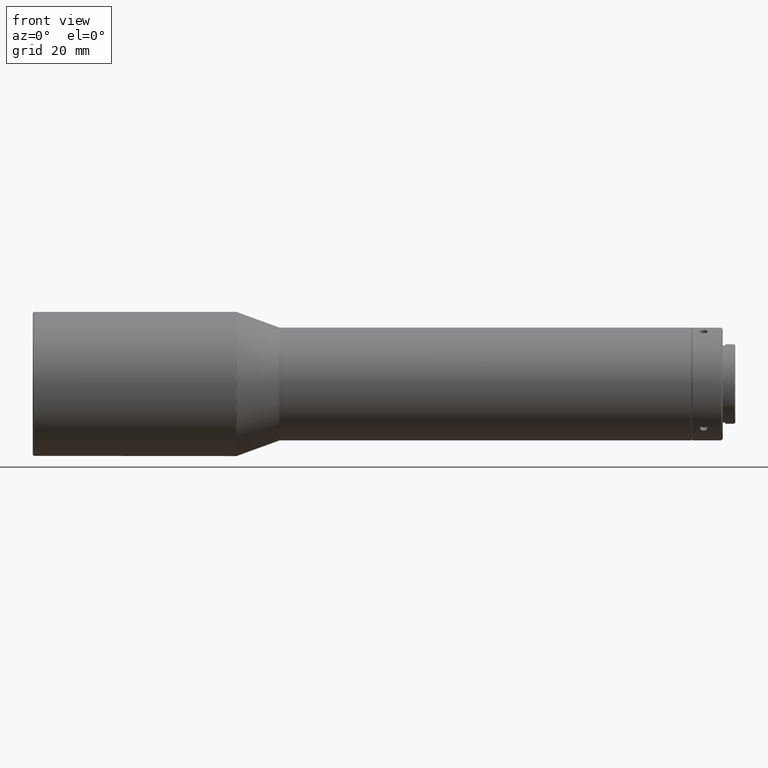
[diagram: clean part render]
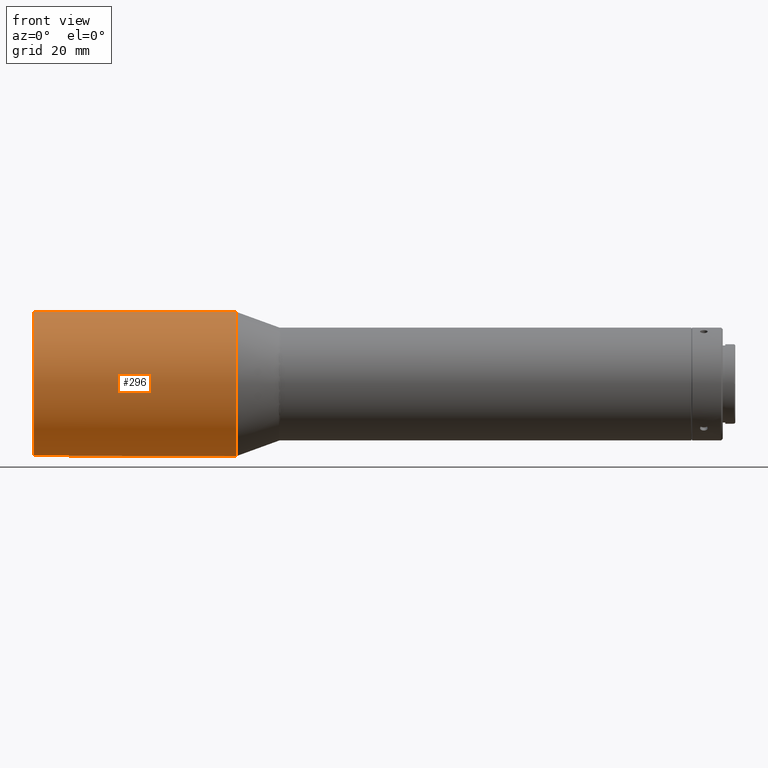
[diagram: same view with one face highlighted and labeled with its STEP entity id]
A machine part, front view. The second image highlights one B-rep face of the part: STEP entity #296.
In plain terms, the highlighted cylindrical surface (bore or boss wall) has radius 23 mm, axis along (-1, -0, -0).
Its self-contained STEP definition (entity closure, byte-faithful):
#80 = FACE_OUTER_BOUND ( 'NONE', #161, .T. ) ;
#92 = CIRCLE ( 'NONE', #198, 23.00000000000000000 ) ;
#112 = VERTEX_POINT ( 'NONE', #509 ) ;
#133 = CYLINDRICAL_SURFACE ( 'NONE', #356, 23.00000000000000000 ) ;
#161 = EDGE_LOOP ( 'NONE', ( #246 ) ) ;
#198 = AXIS2_PLACEMENT_3D ( 'NONE', #382, #387, #841 ) ;
#228 = EDGE_CURVE ( 'NONE', #112, #112, #772, .T. ) ;
#234 = DIRECTION ( 'NONE',  ( 1.000000000000000000, 0.000000000000000000, 0.000000000000000000 ) ) ;
#246 = ORIENTED_EDGE ( 'NONE', *, *, #768, .T. ) ;
#296 = ADVANCED_FACE ( 'NONE', ( #80, #346 ), #133, .T. ) ;
#346 = FACE_OUTER_BOUND ( 'NONE', #725, .T. ) ;
#356 = AXIS2_PLACEMENT_3D ( 'NONE', #719, #520, #448 ) ;
#382 = CARTESIAN_POINT ( 'NONE',  ( 480.3000000000000114, -3.869796473041096393E-15, -3.479664509717021198E-15 ) ) ;
#387 = DIRECTION ( 'NONE',  ( 1.000000000000000000, 0.000000000000000000, 0.000000000000000000 ) ) ;
#448 = DIRECTION ( 'NONE',  ( 0.000000000000000000, 0.000000000000000000, 1.000000000000000000 ) ) ;
#505 = ORIENTED_EDGE ( 'NONE', *, *, #228, .F. ) ;
#509 = CARTESIAN_POINT ( 'NONE',  ( 544.8236730192915047, -3.869796473041096393E-15, -23.00000000000000355 ) ) ;
#520 = DIRECTION ( 'NONE',  ( -1.000000000000000000, -0.000000000000000000, -0.000000000000000000 ) ) ;
#540 = CARTESIAN_POINT ( 'NONE',  ( 480.3000000000000114, -3.869796473041096393E-15, 22.99999999999999645 ) ) ;
#637 = DIRECTION ( 'NONE',  ( 0.000000000000000000, 0.000000000000000000, -1.000000000000000000 ) ) ;
#657 = VERTEX_POINT ( 'NONE', #540 ) ;
#691 = CARTESIAN_POINT ( 'NONE',  ( 544.8236730192915047, -3.869796473041096393E-15, -3.479664509717021198E-15 ) ) ;
#719 = CARTESIAN_POINT ( 'NONE',  ( 480.0000000000000000, -3.869796473041096393E-15, -3.479664509717021198E-15 ) ) ;
#725 = EDGE_LOOP ( 'NONE', ( #505 ) ) ;
#768 = EDGE_CURVE ( 'NONE', #657, #657, #92, .T. ) ;
#772 = CIRCLE ( 'NONE', #830, 23.00000000000000000 ) ;
#830 = AXIS2_PLACEMENT_3D ( 'NONE', #691, #234, #637 ) ;
#841 = DIRECTION ( 'NONE',  ( 0.000000000000000000, 0.000000000000000000, 1.000000000000000000 ) ) ;